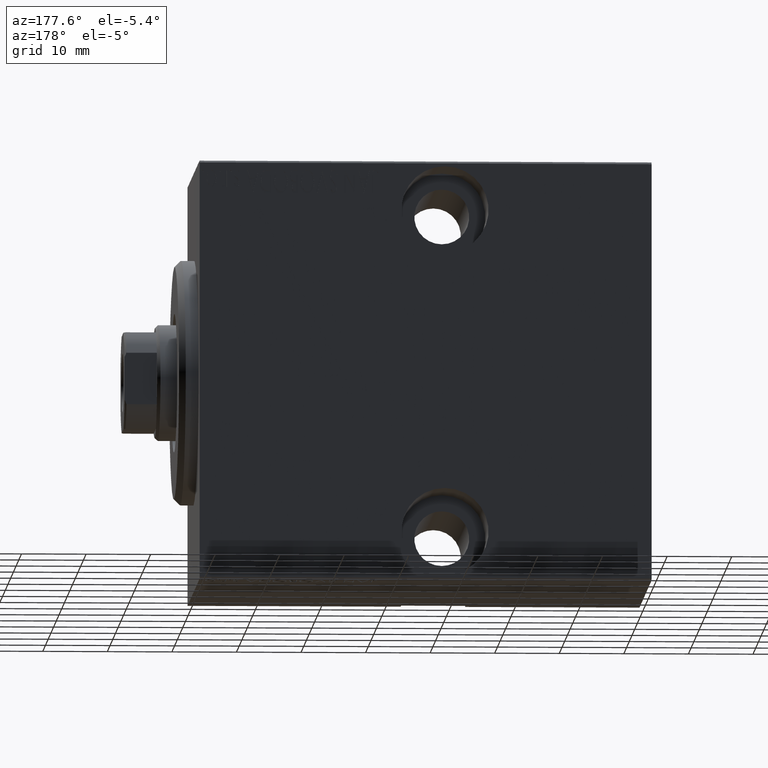
[diagram: clean part render]
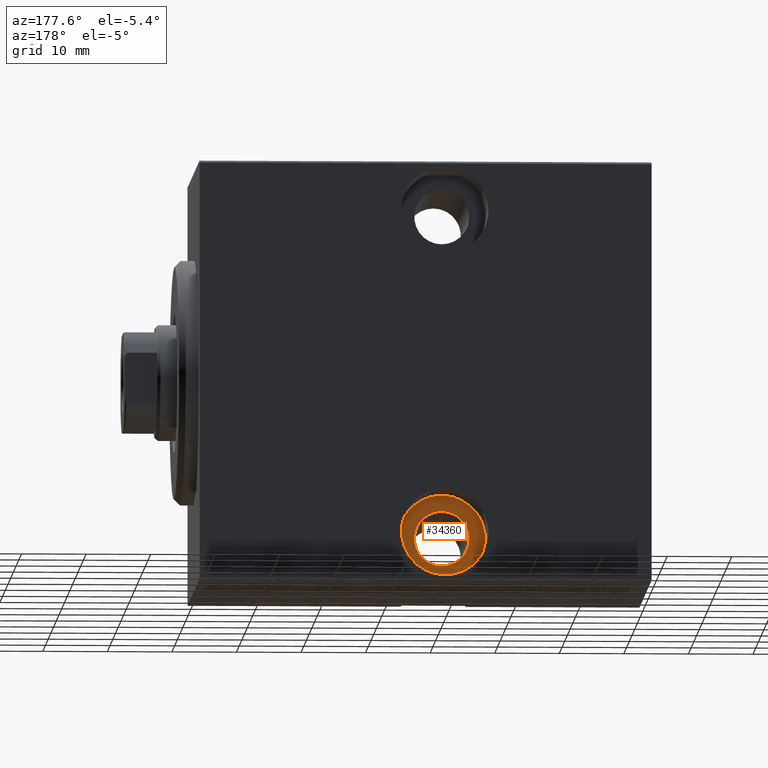
[diagram: same view with one face highlighted and labeled with its STEP entity id]
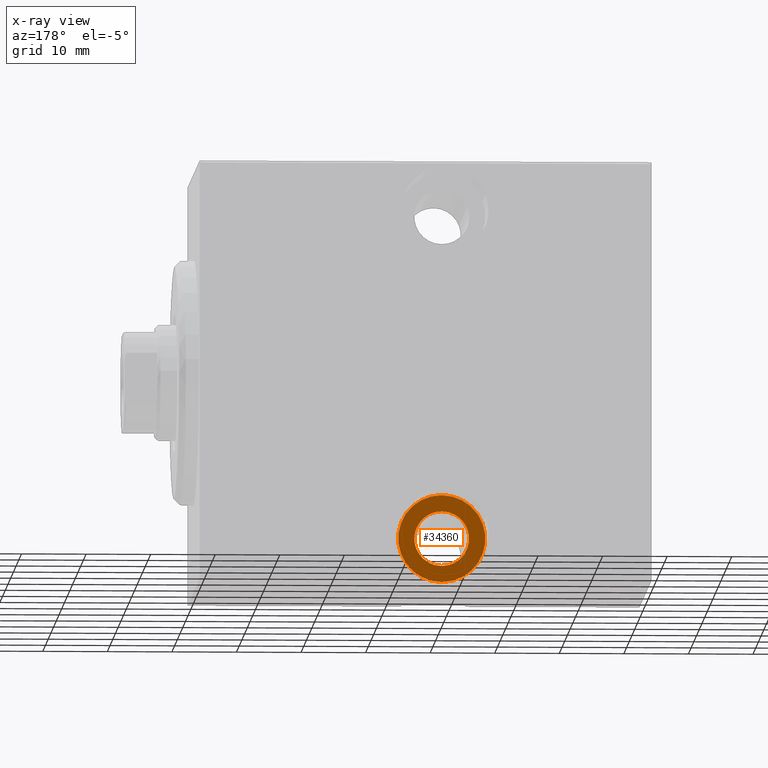
[diagram: x-ray of the same camera — body ghosted, the highlighted face saturated]
A machine part, auxiliary view. The second image highlights one B-rep face of the part: STEP entity #34360.
The next image is the same camera in x-ray: the body ghosted, the highlighted face saturated — about 0% of this face is hidden behind the body in this view.
In plain terms, the highlighted planar face has unit normal (0, 1, 0).
Its self-contained STEP definition (entity closure, byte-faithful):
#318 = EDGE_CURVE ( 'NONE', #5878, #32846, #42196, .T. ) ;
#866 = DIRECTION ( 'NONE',  ( 0.000000000000000000, -2.569960705150824412E-16, -1.000000000000000000 ) ) ;
#2622 = DIRECTION ( 'NONE',  ( -0.000000000000000000, 1.000000000000000000, -1.963837897332234442E-16 ) ) ;
#5144 = EDGE_LOOP ( 'NONE', ( #37992, #29340 ) ) ;
#5185 = ORIENTED_EDGE ( 'NONE', *, *, #18244, .T. ) ;
#5878 = VERTEX_POINT ( 'NONE', #20965 ) ;
#6262 = DIRECTION ( 'NONE',  ( 0.000000000000000000, 0.000000000000000000, -1.000000000000000000 ) ) ;
#6806 = ORIENTED_EDGE ( 'NONE', *, *, #318, .T. ) ;
#6929 = DIRECTION ( 'NONE',  ( 0.000000000000000000, -1.963837897332234442E-16, -1.000000000000000000 ) ) ;
#9948 = FACE_BOUND ( 'NONE', #37548, .T. ) ;
#10193 = CIRCLE ( 'NONE', #11580, 6.750000000000002665 ) ;
#11580 = AXIS2_PLACEMENT_3D ( 'NONE', #35680, #26191, #15649 ) ;
#12287 = CIRCLE ( 'NONE', #38434, 4.249999999999996447 ) ;
#12421 = EDGE_CURVE ( 'NONE', #33557, #20599, #14625, .T. ) ;
#13167 = FACE_OUTER_BOUND ( 'NONE', #5144, .T. ) ;
#13980 = CARTESIAN_POINT ( 'NONE',  ( 38.00000000000001421, -10.49999999999999822, -25.00000000000000355 ) ) ;
#14625 = CIRCLE ( 'NONE', #38718, 6.750000000000002665 ) ;
#15649 = DIRECTION ( 'NONE',  ( 0.000000000000000000, -2.569960705150824412E-16, -1.000000000000000000 ) ) ;
#16621 = PLANE ( 'NONE',  #31797 ) ;
#17426 = DIRECTION ( 'NONE',  ( 0.000000000000000000, -1.000000000000000000, 1.963837897332234442E-16 ) ) ;
#17465 = EDGE_CURVE ( 'NONE', #20599, #33557, #10193, .T. ) ;
#18223 = DIRECTION ( 'NONE',  ( -0.000000000000000000, 1.000000000000000000, -1.963837897332234442E-16 ) ) ;
#18244 = EDGE_CURVE ( 'NONE', #32846, #5878, #12287, .T. ) ;
#20599 = VERTEX_POINT ( 'NONE', #34212 ) ;
#20965 = CARTESIAN_POINT ( 'NONE',  ( 38.00000000000001421, -10.49999999999999822, -20.75000000000000355 ) ) ;
#21451 = CARTESIAN_POINT ( 'NONE',  ( 38.00000000000001421, -10.49999999999999822, -25.00000000000000000 ) ) ;
#22425 = CARTESIAN_POINT ( 'NONE',  ( 38.00000000000001421, -10.49999999999999822, -25.00000000000000000 ) ) ;
#26191 = DIRECTION ( 'NONE',  ( 0.000000000000000000, -1.000000000000000000, 1.963837897332234442E-16 ) ) ;
#29078 = AXIS2_PLACEMENT_3D ( 'NONE', #21451, #18223, #31358 ) ;
#29340 = ORIENTED_EDGE ( 'NONE', *, *, #12421, .T. ) ;
#29748 = CARTESIAN_POINT ( 'NONE',  ( 38.00000000000001421, -10.49999999999999822, -25.00000000000000355 ) ) ;
#29847 = CARTESIAN_POINT ( 'NONE',  ( 38.00000000000001421, -10.49999999999999822, -29.25000000000000000 ) ) ;
#31358 = DIRECTION ( 'NONE',  ( 0.000000000000000000, 0.000000000000000000, -1.000000000000000000 ) ) ;
#31797 = AXIS2_PLACEMENT_3D ( 'NONE', #29748, #36442, #6929 ) ;
#32846 = VERTEX_POINT ( 'NONE', #29847 ) ;
#33557 = VERTEX_POINT ( 'NONE', #37286 ) ;
#34212 = CARTESIAN_POINT ( 'NONE',  ( 38.00000000000001421, -10.50000000000000000, -31.75000000000000711 ) ) ;
#34360 = ADVANCED_FACE ( 'NONE', ( #13167, #9948 ), #16621, .T. ) ;
#35680 = CARTESIAN_POINT ( 'NONE',  ( 38.00000000000001421, -10.49999999999999822, -25.00000000000000355 ) ) ;
#36442 = DIRECTION ( 'NONE',  ( 0.000000000000000000, -1.000000000000000000, 1.963837897332234442E-16 ) ) ;
#37286 = CARTESIAN_POINT ( 'NONE',  ( 38.00000000000001421, -10.49999999999999645, -18.25000000000000355 ) ) ;
#37548 = EDGE_LOOP ( 'NONE', ( #6806, #5185 ) ) ;
#37992 = ORIENTED_EDGE ( 'NONE', *, *, #17465, .T. ) ;
#38434 = AXIS2_PLACEMENT_3D ( 'NONE', #22425, #2622, #6262 ) ;
#38718 = AXIS2_PLACEMENT_3D ( 'NONE', #13980, #17426, #866 ) ;
#42196 = CIRCLE ( 'NONE', #29078, 4.249999999999996447 ) ;